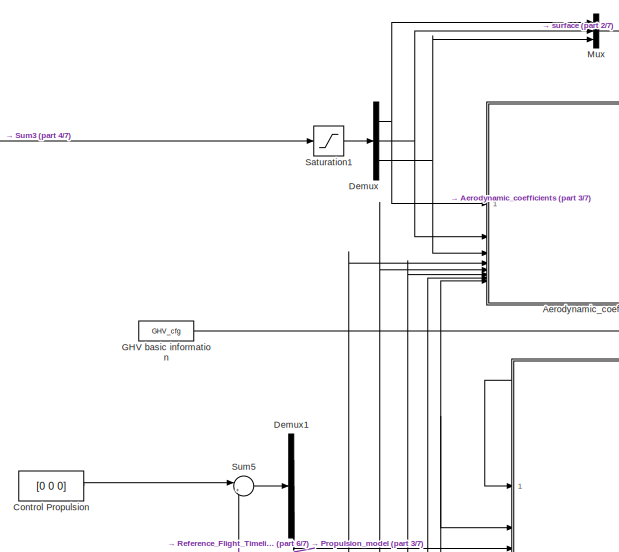
[diagram: root canvas - part 1/7, top left region]
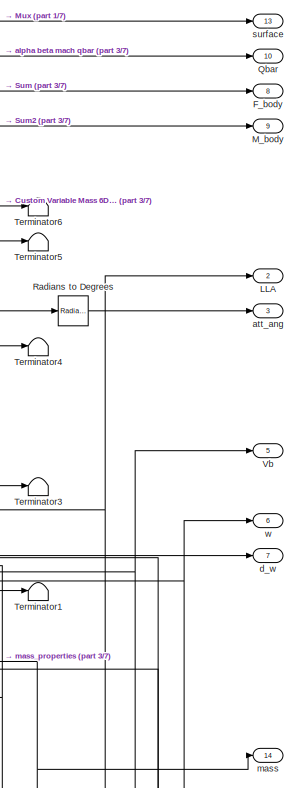
[diagram: root canvas - part 2/7, top right region]
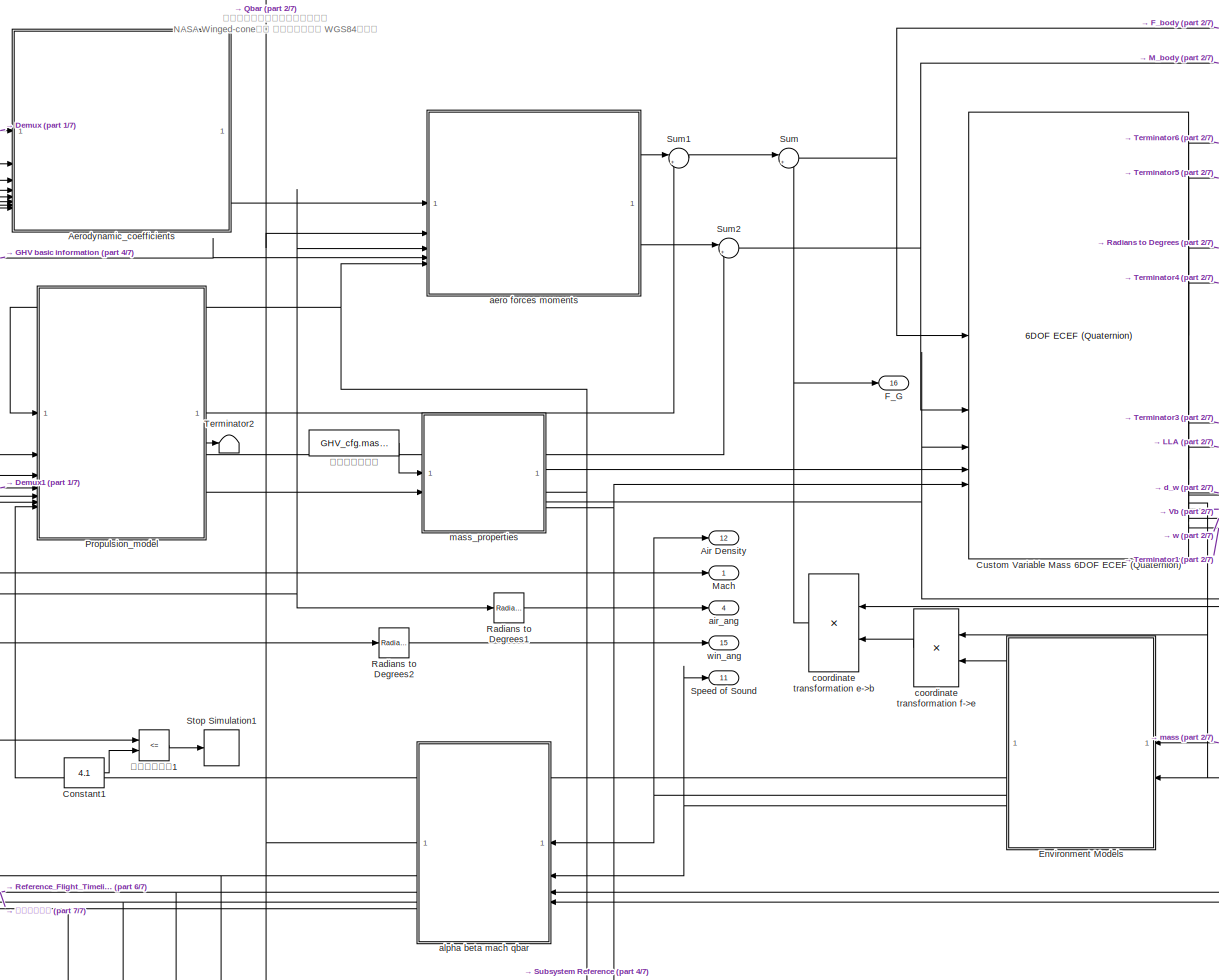
[diagram: root canvas - part 3/7, top center region]
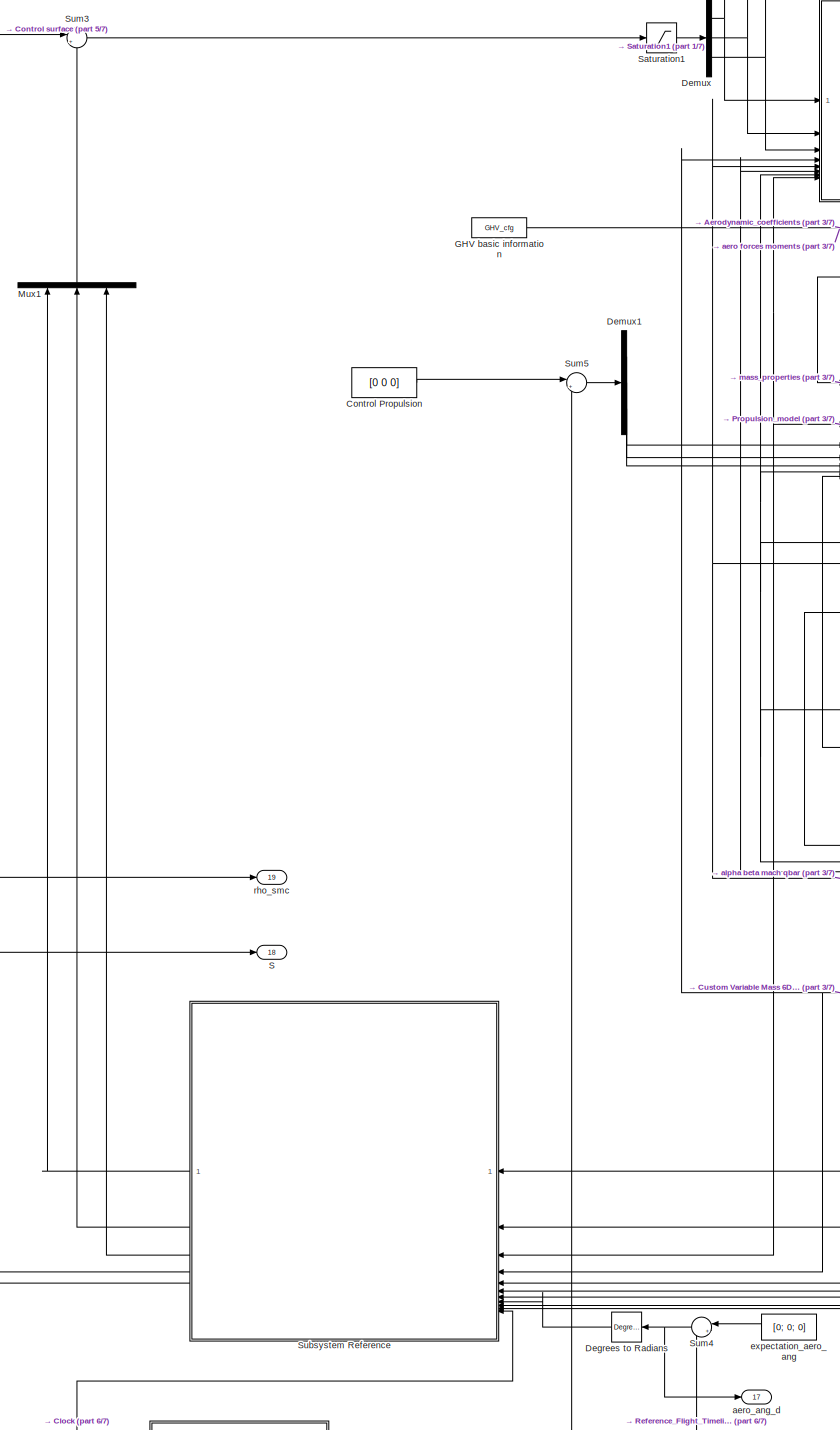
[diagram: root canvas - part 4/7, left side, full height]
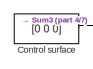
[diagram: root canvas - part 5/7, top left region]
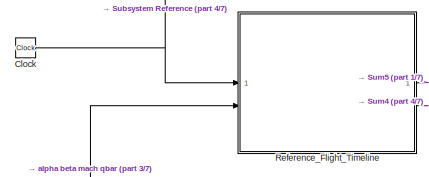
[diagram: root canvas - part 6/7, bottom left region]
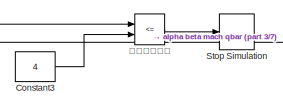
[diagram: root canvas - part 7/7, bottom left region]
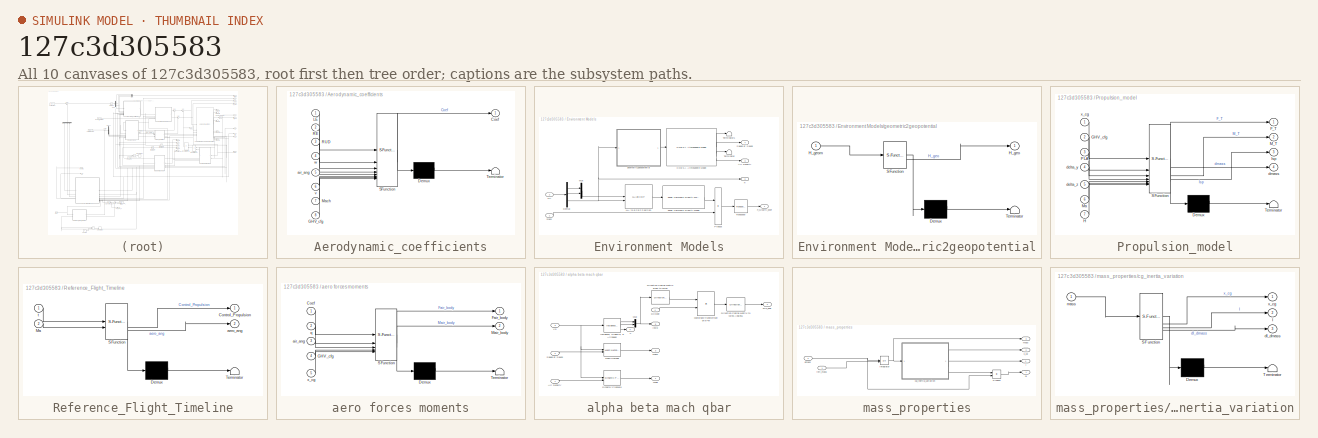
[diagram: thumbnail index - all 10 canvases of the model, root first then tree order]
MODEL slx_127c3d305583
KIND model
CONFIG AbsTol = auto
CONFIG EnableMultiTasking = off
CONFIG FixedStep = 0.0000001
CONFIG InitFcn = run('init.m')
CONFIG MaxStep = 0.001
CONFIG MinStep = auto
CONFIG RelTol = 1e-3
CONFIG SampleTimeConstraint = Unconstrained
CONFIG SolverName = VariableStepAuto
CONFIG StartTime = 0
CONFIG StopTime = 840
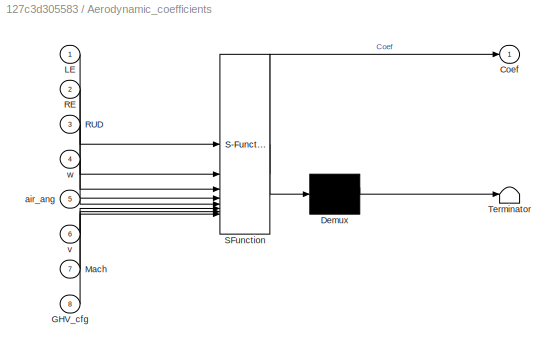
BLOCK [SubSystem] Aerodynamic_coefficients
  ErrorFcn = Stateflow.Translate.translate
  PermitHierarchicalResolution = ExplicitOnly
  SFBlockType = MATLAB Function
  TreatAsAtomicUnit = on
BLOCK [Demux] Aerodynamic_coefficients/ Demux 
  Outputs = 1
BLOCK [S-Function] Aerodynamic_coefficients/ SFunction 
  EnableBusSupport = on
  FunctionName = sf_sfun
  PortCounts = [8 2]
  SFcnIsStateOwnerBlock = off
  SFunctionDeploymentMode = off
  Tag = Stateflow S-Function 2
BLOCK [Terminator] Aerodynamic_coefficients/ Terminator 
BLOCK [Outport] Aerodynamic_coefficients/Coef
BLOCK [Inport] Aerodynamic_coefficients/GHV_cfg
  Port = 8
BLOCK [Inport] Aerodynamic_coefficients/LE
BLOCK [Inport] Aerodynamic_coefficients/Mach
  Port = 7
BLOCK [Inport] Aerodynamic_coefficients/RE
  Port = 2
BLOCK [Inport] Aerodynamic_coefficients/RUD
  Port = 3
BLOCK [Inport] Aerodynamic_coefficients/air_ang
  Port = 5
BLOCK [Inport] Aerodynamic_coefficients/v
  Port = 6
BLOCK [Inport] Aerodynamic_coefficients/w
  Port = 4
BLOCK [Outport] Air Density
  Port = 12
BLOCK [Clock] Clock
BLOCK [Constant] Constant1
  Value = 4.1
BLOCK [Constant] Constant3
  Value = 4
BLOCK [Constant] Control Propulsion
  Value = [0 0 0]
BLOCK [Constant] Control surface
  Value = [0 0 0]
BLOCK [Reference] Custom Variable Mass 6DOF ECEF (Quaternion)  REF=aerolib6dof2/6DOF ECEF (Quaternion)
  LibrarySourceBlock = aerolib6dof2/Custom Variable Mass 6DOF\nECEF (Quaternion)
  SourceBlock = aerolib6dof2/6DOF ECEF (Quaternion)
  SourceType = 6DOF EoM (ECEF)
BLOCK [Reference] Degrees to Radians  REF=simulink_extras/Transformations/Degrees to
Radians
  SourceBlock = simulink_extras/Transformations/Degrees to\nRadians
  SourceType = DegreesToRadians
BLOCK [Demux] Demux
  Outputs = 3
BLOCK [Demux] Demux1
  Outputs = 3
BLOCK [SubSystem] Environment Models
BLOCK [Outport] Environment Models/Air Density
  Port = 3
BLOCK [Reference] Environment Models/COESA Atmosphere Model  REF=aerolibatmos2/COESA Atmosphere Model
  SourceBlock = aerolibatmos2/COESA Atmosphere Model
  SourceType = Atmosphere Model
BLOCK [Demux] Environment Models/Demux
  Outputs = 3
BLOCK [Outport] Environment Models/F_Gravity_ecef
BLOCK [Inport] Environment Models/LLA
  Port = 2
BLOCK [LLA2ECEF] Environment Models/LLA to ECEF Position
BLOCK [Mux] Environment Models/Mux
  DisplayOption = bar
  Inputs = 2
BLOCK [Product] Environment Models/Product
BLOCK [Outport] Environment Models/Speed of Sound
  Port = 4
BLOCK [Terminator] Environment Models/Terminator
BLOCK [Terminator] Environment Models/Terminator1
BLOCK [Reference] Environment Models/Transpose  REF=matrix_library/Transpose
  LibrarySourceBlock = simulink/Matrix\nOperations/Transpose
  SourceBlock = matrix_library/Transpose
  SourceType = Transpose
BLOCK [Reference] Environment Models/Zonal Harmonic Gravity Model  REF=aerolibgravity2/Zonal Harmonic Gravity Model
  SourceBlock = aerolibgravity2/Zonal Harmonic Gravity Model
  SourceType = Zonal Harmonic Gravity Model
BLOCK [SubSystem] Environment Models/geometric2geopotential
  ErrorFcn = Stateflow.Translate.translate
  PermitHierarchicalResolution = ExplicitOnly
  SFBlockType = MATLAB Function
  TreatAsAtomicUnit = on
BLOCK [Demux] Environment Models/geometric2geopotential/ Demux 
  Outputs = 1
BLOCK [S-Function] Environment Models/geometric2geopotential/ SFunction 
  EnableBusSupport = on
  FunctionName = sf_sfun
  PortCounts = [1 2]
  SFcnIsStateOwnerBlock = off
  SFunctionDeploymentMode = off
  Tag = Stateflow S-Function 4
BLOCK [Terminator] Environment Models/geometric2geopotential/ Terminator 
BLOCK [Outport] Environment Models/geometric2geopotential/H_geo
BLOCK [Inport] Environment Models/geometric2geopotential/H_geom
BLOCK [Outport] Environment Models/h
  Port = 2
BLOCK [Inport] Environment Models/mass
BLOCK [Outport] F_G
  Port = 16
BLOCK [Outport] F_body
  Port = 8
BLOCK [Constant] GHV basic information
  OutDataTypeStr = Bus: slBus1
  Value = GHV_cfg
  VectorParams1D = off
BLOCK [Outport] LLA
  Port = 2
BLOCK [Outport] M_body
  Port = 9
BLOCK [Outport] Mach
BLOCK [Mux] Mux
  DisplayOption = bar
  Inputs = 3
BLOCK [Mux] Mux1
  DisplayOption = bar
  Inputs = 3
  NameLocation = right
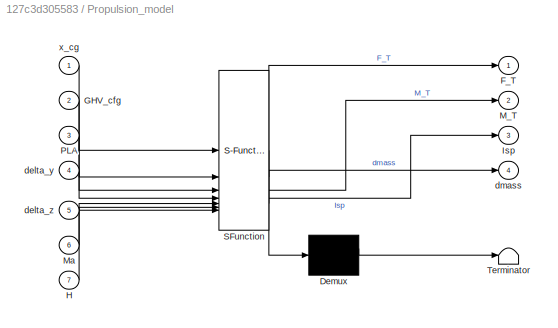
BLOCK [SubSystem] Propulsion_model
  ErrorFcn = Stateflow.Translate.translate
  PermitHierarchicalResolution = ExplicitOnly
  SFBlockType = MATLAB Function
  TreatAsAtomicUnit = on
BLOCK [Demux] Propulsion_model/ Demux 
  Outputs = 1
BLOCK [S-Function] Propulsion_model/ SFunction 
  EnableBusSupport = on
  FunctionName = sf_sfun
  PortCounts = [7 5]
  SFcnIsStateOwnerBlock = off
  SFunctionDeploymentMode = off
  Tag = Stateflow S-Function 1
BLOCK [Terminator] Propulsion_model/ Terminator 
BLOCK [Outport] Propulsion_model/F_T
BLOCK [Inport] Propulsion_model/GHV_cfg
  Port = 2
BLOCK [Inport] Propulsion_model/H
  Port = 7
BLOCK [Outport] Propulsion_model/Isp
  Port = 3
BLOCK [Outport] Propulsion_model/M_T
  Port = 2
BLOCK [Inport] Propulsion_model/Ma
  Port = 6
BLOCK [Inport] Propulsion_model/PLA
  Port = 3
BLOCK [Inport] Propulsion_model/delta_y
  Port = 4
BLOCK [Inport] Propulsion_model/delta_z
  Port = 5
BLOCK [Outport] Propulsion_model/dmass
  Port = 4
BLOCK [Inport] Propulsion_model/x_cg
BLOCK [Outport] Qbar
  Port = 10
BLOCK [Reference] Radians to Degrees  REF=simulink_extras/Transformations/Radians
to Degrees
  SourceBlock = simulink_extras/Transformations/Radians\nto Degrees
  SourceType = RadiansToDegrees
BLOCK [Reference] Radians to Degrees1  REF=simulink_extras/Transformations/Radians
to Degrees
  SourceBlock = simulink_extras/Transformations/Radians\nto Degrees
  SourceType = RadiansToDegrees
BLOCK [Reference] Radians to Degrees2  REF=simulink_extras/Transformations/Radians
to Degrees
  SourceBlock = simulink_extras/Transformations/Radians\nto Degrees
  SourceType = RadiansToDegrees
BLOCK [SubSystem] Reference_Flight_Timeline
  ErrorFcn = Stateflow.Translate.translate
  PermitHierarchicalResolution = ExplicitOnly
  SFBlockType = MATLAB Function
  TreatAsAtomicUnit = on
BLOCK [Demux] Reference_Flight_Timeline/ Demux 
  Outputs = 1
BLOCK [S-Function] Reference_Flight_Timeline/ SFunction 
  EnableBusSupport = on
  FunctionName = sf_sfun
  PortCounts = [2 3]
  SFcnIsStateOwnerBlock = off
  SFunctionDeploymentMode = off
  Tag = Stateflow S-Function 8
BLOCK [Terminator] Reference_Flight_Timeline/ Terminator 
BLOCK [Outport] Reference_Flight_Timeline/Control_Propulsion
BLOCK [Inport] Reference_Flight_Timeline/Ma
  Port = 2
BLOCK [Outport] Reference_Flight_Timeline/aero_ang
  Port = 2
BLOCK [Inport] Reference_Flight_Timeline/t
BLOCK [Outport] S
  Port = 18
BLOCK [Saturate] Saturation1
  LowerLimit = -30
  UpperLimit = 30
BLOCK [Outport] Speed of Sound
  Port = 11
BLOCK [Stop] Stop Simulation
BLOCK [Stop] Stop Simulation1
BLOCK [SubSystem] Subsystem Reference
  PortSchema = {"entries":[{"content":{"sides":[{"content":{"connectorIds":["In3","In4","In9","In1","In2","In10","In5","In6","In7","In8","In11"]},"type":"ConnectorPlacement.EquallySpacedRectSide","uuid":"d16573b0-003d-4406-8236-24f2e66cdcc6"},{"content":{"connectorIds":["Out3","Out2","Out1","Out4","Out5"],"side":"RIGHT"},"type":"ConnectorPlacement.EquallySpacedRectSide","uuid":"8f215ada-bc58-4b5c-bd2e-12efaced2d...<+312ch>
  ReferencedSubsystem = MIMO_attitude_adaptive_smc
BLOCK [Sum] Sum
  Inputs = |++
BLOCK [Sum] Sum1
  Inputs = |++
BLOCK [Sum] Sum2
  Inputs = |++
BLOCK [Sum] Sum3
  Inputs = |++
BLOCK [Sum] Sum4
  Inputs = |++
BLOCK [Sum] Sum5
  Inputs = |++
BLOCK [Terminator] Terminator1
BLOCK [Terminator] Terminator2
BLOCK [Terminator] Terminator3
BLOCK [Terminator] Terminator4
BLOCK [Terminator] Terminator5
BLOCK [Terminator] Terminator6
BLOCK [Outport] Vb
  Port = 5
BLOCK [SubSystem] aero forces moments
  ErrorFcn = Stateflow.Translate.translate
  PermitHierarchicalResolution = ExplicitOnly
  SFBlockType = MATLAB Function
  TreatAsAtomicUnit = on
BLOCK [Demux] aero forces moments/ Demux 
  Outputs = 1
BLOCK [S-Function] aero forces moments/ SFunction 
  EnableBusSupport = on
  FunctionName = sf_sfun
  PortCounts = [5 3]
  SFcnIsStateOwnerBlock = off
  SFunctionDeploymentMode = off
  Tag = Stateflow S-Function 3
BLOCK [Terminator] aero forces moments/ Terminator 
BLOCK [Inport] aero forces moments/Coef
BLOCK [Outport] aero forces moments/Fair_body
BLOCK [Inport] aero forces moments/GHV_cfg
  Port = 4
BLOCK [Outport] aero forces moments/Mair_body
  Port = 2
BLOCK [Inport] aero forces moments/air_ang
  Port = 3
BLOCK [Inport] aero forces moments/q
  Port = 2
BLOCK [Inport] aero forces moments/x_cg
  Port = 5
BLOCK [Outport] aero_ang_d
  Port = 17
BLOCK [Outport] air_ang
  Port = 4
BLOCK [SubSystem] alpha beta mach qbar
BLOCK [Inport] alpha beta mach qbar/Air Density
BLOCK [Inport] alpha beta mach qbar/DCMbe
  Port = 4
BLOCK [Reference] alpha beta mach qbar/Direction Cosine Matrix Body to Wind  REF=aerolibtransform2/Direction Cosine Matrix
Body to Wind
  SourceBlock = aerolibtransform2/Direction Cosine Matrix\nBody to Wind
  SourceType = DCM Body to Wind
BLOCK [Reference] alpha beta mach qbar/Direction Cosine Matrix to Wind Angles1  REF=aerolibtransform2/Direction Cosine Matrix to
Wind Angles
  SourceBlock = aerolibtransform2/Direction Cosine Matrix to\nWind Angles
  SourceType = DCM2Wind
BLOCK [Reference] alpha beta mach qbar/Dynamic Pressure  REF=aerolibasang/Dynamic Pressure
  SourceBlock = aerolibasang/Dynamic Pressure
  SourceType = Dynamic Pressure
BLOCK [Outport] alpha beta mach qbar/Incid
  Port = 5
BLOCK [Reference] alpha beta mach qbar/Incidence, Sideslip, & Airspeed  REF=aerolibasang/Incidence, Sideslip,
& Airspeed
  SourceBlock = aerolibasang/Incidence, Sideslip,\n& Airspeed
  SourceType = Incidence,Sideslip,&Airspeed
BLOCK [Outport] alpha beta mach qbar/Mach
  Port = 3
BLOCK [Reference] alpha beta mach qbar/Mach Number  REF=aerolibasang/Mach Number
  SourceBlock = aerolibasang/Mach Number
  SourceType = Mach Number
BLOCK [Mux] alpha beta mach qbar/Mux
  DisplayOption = bar
  Inputs = 2
BLOCK [Outport] alpha beta mach qbar/Qbar
BLOCK [Inport] alpha beta mach qbar/Speed of Sound
  Port = 2
BLOCK [Outport] alpha beta mach qbar/V
  Port = 4
BLOCK [Inport] alpha beta mach qbar/Vb
  Port = 3
BLOCK [Product] alpha beta mach qbar/coordinate transformation e->w
  Multiplication = Matrix(*)
BLOCK [Outport] alpha beta mach qbar/win_ang
  Port = 2
BLOCK [Outport] att_ang
  Port = 3
BLOCK [Product] coordinate transformation e->b
  Multiplication = Matrix(*)
BLOCK [Product] coordinate transformation f->e
  Multiplication = Matrix(*)
BLOCK [Outport] d_w
  Port = 7
BLOCK [Constant] expectation_aero_ang
  Value = [0; 0; 0]
  VectorParams1D = off
BLOCK [Outport] mass
  Port = 14
BLOCK [SubSystem] mass_properties
BLOCK [Outport] mass_properties/I
  Port = 4
BLOCK [Integrator] mass_properties/Integrator
  InitialConditionSource = external
BLOCK [Product] mass_properties/Product
BLOCK [SubSystem] mass_properties/cg_inertia_variation
  ErrorFcn = Stateflow.Translate.translate
  PermitHierarchicalResolution = ExplicitOnly
  SFBlockType = MATLAB Function
  TreatAsAtomicUnit = on
BLOCK [Demux] mass_properties/cg_inertia_variation/ Demux 
  Outputs = 1
BLOCK [S-Function] mass_properties/cg_inertia_variation/ SFunction 
  EnableBusSupport = on
  FunctionName = sf_sfun
  PortCounts = [1 4]
  SFcnIsStateOwnerBlock = off
  SFunctionDeploymentMode = off
  Tag = Stateflow S-Function 7
BLOCK [Terminator] mass_properties/cg_inertia_variation/ Terminator 
BLOCK [Outport] mass_properties/cg_inertia_variation/I
  Port = 2
BLOCK [Outport] mass_properties/cg_inertia_variation/dI_dmass
  Port = 3
BLOCK [Inport] mass_properties/cg_inertia_variation/mass
BLOCK [Outport] mass_properties/cg_inertia_variation/x_cg
BLOCK [Outport] mass_properties/dI
BLOCK [Inport] mass_properties/dmass
  Port = 2
BLOCK [Inport] mass_properties/init_mass
BLOCK [Outport] mass_properties/mass
  Port = 3
BLOCK [Outport] mass_properties/x_cg
  Port = 2
BLOCK [Outport] rho_smc
  Port = 19
BLOCK [Outport] surface
  Port = 13
BLOCK [Outport] w
  Port = 6
BLOCK [Outport] win_ang
  Port = 15
BLOCK [RelationalOperator] 仿真停止条件
  InputSameDT = off
  Operator = <=
  OutDataTypeStr = boolean
  RndMeth = Simplest
BLOCK [RelationalOperator] 仿真停止条件1
  InputSameDT = off
  Operator = <=
  OutDataTypeStr = boolean
  RndMeth = Simplest
BLOCK [Constant] 飞行器初始质量
  Value = GHV_cfg.mass_full
ANNOTATION (root): 高超声速飞行器六自由度仿真平台 NASA Winged-cone模型 变质量推力模型 WGS84坐标系
LINE Aerodynamic_coefficients:1 -> aero forces moments:1
NET Clock:1 -> Reference_Flight_Timeline:1, Subsystem Reference:11
LINE Constant1:1 -> 仿真停止条件1:2
LINE Constant3:1 -> 仿真停止条件:2
LINE Control Propulsion:1 -> Sum5:1
LINE Control surface:1 -> Sum3:1
LINE Custom Variable Mass 6DOF ECEF (Quaternion):1 -> Terminator6:1
NET Custom Variable Mass 6DOF ECEF (Quaternion):10 -> Aerodynamic_coefficients:4, Subsystem Reference:4, w:1
LINE Custom Variable Mass 6DOF ECEF (Quaternion):11 -> d_w:1
LINE Custom Variable Mass 6DOF ECEF (Quaternion):12 -> Terminator1:1
LINE Custom Variable Mass 6DOF ECEF (Quaternion):2 -> Terminator5:1
NET Custom Variable Mass 6DOF ECEF (Quaternion):3 -> Environment Models:2, LLA:1
LINE Custom Variable Mass 6DOF ECEF (Quaternion):4 -> Radians to Degrees:1
LINE Custom Variable Mass 6DOF ECEF (Quaternion):5 -> Terminator4:1
NET Custom Variable Mass 6DOF ECEF (Quaternion):6 -> alpha beta mach qbar:4, coordinate transformation e->b:1
LINE Custom Variable Mass 6DOF ECEF (Quaternion):7 -> coordinate transformation f->e:1
NET Custom Variable Mass 6DOF ECEF (Quaternion):8 -> Vb:1, alpha beta mach qbar:3
LINE Custom Variable Mass 6DOF ECEF (Quaternion):9 -> Terminator3:1
LINE Degrees to Radians:1 -> Subsystem Reference:8
LINE Demux1:1 -> Propulsion_model:3
LINE Demux1:2 -> Propulsion_model:4
LINE Demux1:3 -> Propulsion_model:5
NET Demux:1 -> Aerodynamic_coefficients:1, Mux:1
NET Demux:2 -> Aerodynamic_coefficients:2, Mux:2
NET Demux:3 -> Aerodynamic_coefficients:3, Mux:3
LINE Environment Models/COESA Atmosphere Model:1 -> Environment Models/Terminator1:1
LINE Environment Models/COESA Atmosphere Model:2 -> Environment Models/Speed of Sound:1
LINE Environment Models/COESA Atmosphere Model:3 -> Environment Models/Terminator:1
LINE Environment Models/COESA Atmosphere Model:4 -> Environment Models/Air Density:1
LINE Environment Models/Demux:1 -> Environment Models/Mux:1
LINE Environment Models/Demux:2 -> Environment Models/Mux:2
NET Environment Models/Demux:3 -> Environment Models/LLA to ECEF Position:2, Environment Models/geometric2geopotential:1, Environment Models/h:1
LINE Environment Models/LLA to ECEF Position:1 -> Environment Models/Zonal Harmonic Gravity Model:1
LINE Environment Models/LLA:1 -> Environment Models/Demux:1
LINE Environment Models/Mux:1 -> Environment Models/LLA to ECEF Position:1
LINE Environment Models/Product:1 -> Environment Models/Transpose:1
LINE Environment Models/Transpose:1 -> Environment Models/F_Gravity_ecef:1
LINE Environment Models/Zonal Harmonic Gravity Model:1 -> Environment Models/Product:1
LINE Environment Models/geometric2geopotential:1 -> Environment Models/COESA Atmosphere Model:1
LINE Environment Models/mass:1 -> Environment Models/Product:2
LINE Environment Models:1 -> coordinate transformation f->e:2
LINE Environment Models:2 -> Propulsion_model:7
NET Environment Models:3 -> Air Density:1, alpha beta mach qbar:1
NET Environment Models:4 -> Speed of Sound:1, alpha beta mach qbar:2
NET GHV basic information:1 -> Aerodynamic_coefficients:8, Propulsion_model:2, Subsystem Reference:3, aero forces moments:4
LINE Mux1:1 -> Sum3:2
LINE Mux:1 -> surface:1
LINE Propulsion_model:1 -> Sum1:2
LINE Propulsion_model:2 -> Sum2:2
LINE Propulsion_model:3 -> Terminator2:1
LINE Propulsion_model:4 -> mass_properties:2
LINE Radians to Degrees1:1 -> air_ang:1
LINE Radians to Degrees2:1 -> win_ang:1
LINE Radians to Degrees:1 -> att_ang:1
LINE Reference_Flight_Timeline:1 -> Sum5:2
LINE Reference_Flight_Timeline:2 -> Sum4:2
LINE Saturation1:1 -> Demux:1
LINE Subsystem Reference:1 -> Mux1:1
LINE Subsystem Reference:2 -> Mux1:2
LINE Subsystem Reference:3 -> Mux1:3
LINE Subsystem Reference:4 -> S:1
LINE Subsystem Reference:5 -> rho_smc:1
LINE Sum1:1 -> Sum:1
NET Sum2:1 -> Custom Variable Mass 6DOF ECEF (Quaternion):2, M_body:1
LINE Sum3:1 -> Saturation1:1
NET Sum4:1 -> Degrees to Radians:1, aero_ang_d:1
LINE Sum5:1 -> Demux1:1
NET Sum:1 -> Custom Variable Mass 6DOF ECEF (Quaternion):1, F_body:1
LINE aero forces moments:1 -> Sum1:1
LINE aero forces moments:2 -> Sum2:1
LINE alpha beta mach qbar/Air Density:1 -> alpha beta mach qbar/Dynamic Pressure:2
LINE alpha beta mach qbar/DCMbe:1 -> alpha beta mach qbar/coordinate transformation e->w:2
LINE alpha beta mach qbar/Direction Cosine Matrix Body to Wind:1 -> alpha beta mach qbar/coordinate transformation e->w:1
LINE alpha beta mach qbar/Direction Cosine Matrix to Wind Angles1:1 -> alpha beta mach qbar/win_ang:1
LINE alpha beta mach qbar/Dynamic Pressure:1 -> alpha beta mach qbar/Qbar:1
LINE alpha beta mach qbar/Incidence, Sideslip, & Airspeed:1 -> alpha beta mach qbar/Mux:1
LINE alpha beta mach qbar/Incidence, Sideslip, & Airspeed:2 -> alpha beta mach qbar/Mux:2
LINE alpha beta mach qbar/Incidence, Sideslip, & Airspeed:3 -> alpha beta mach qbar/V:1
LINE alpha beta mach qbar/Mach Number:1 -> alpha beta mach qbar/Mach:1
NET alpha beta mach qbar/Mux:1 -> alpha beta mach qbar/Direction Cosine Matrix Body to Wind:1, alpha beta mach qbar/Incid:1
LINE alpha beta mach qbar/Speed of Sound:1 -> alpha beta mach qbar/Mach Number:2
NET alpha beta mach qbar/Vb:1 -> alpha beta mach qbar/Dynamic Pressure:1, alpha beta mach qbar/Incidence, Sideslip, & Airspeed:1, alpha beta mach qbar/Mach Number:1
LINE alpha beta mach qbar/coordinate transformation e->w:1 -> alpha beta mach qbar/Direction Cosine Matrix to Wind Angles1:1
NET alpha beta mach qbar:1 -> Qbar:1, Subsystem Reference:5, aero forces moments:2
NET alpha beta mach qbar:2 -> Radians to Degrees2:1, Subsystem Reference:10
NET alpha beta mach qbar:3 -> Aerodynamic_coefficients:7, Mach:1, Propulsion_model:6, Reference_Flight_Timeline:2, Subsystem Reference:2, 仿真停止条件1:1, 仿真停止条件:1
NET alpha beta mach qbar:4 -> Aerodynamic_coefficients:6, Subsystem Reference:1
NET alpha beta mach qbar:5 -> Aerodynamic_coefficients:5, Radians to Degrees1:1, Subsystem Reference:9, aero forces moments:3
NET coordinate transformation e->b:1 -> F_G:1, Sum:2
LINE coordinate transformation f->e:1 -> coordinate transformation e->b:2
LINE expectation_aero_ang:1 -> Sum4:1
NET mass_properties/Integrator:1 -> mass_properties/cg_inertia_variation:1, mass_properties/mass:1
LINE mass_properties/Product:1 -> mass_properties/dI:1
LINE mass_properties/cg_inertia_variation:1 -> mass_properties/x_cg:1
LINE mass_properties/cg_inertia_variation:2 -> mass_properties/I:1
LINE mass_properties/cg_inertia_variation:3 -> mass_properties/Product:1
NET mass_properties/dmass:1 -> mass_properties/Integrator:1, mass_properties/Product:2
LINE mass_properties/init_mass:1 -> mass_properties/Integrator:2
LINE mass_properties:1 -> Custom Variable Mass 6DOF ECEF (Quaternion):4
NET mass_properties:2 -> Propulsion_model:1, Subsystem Reference:6, aero forces moments:5
NET mass_properties:3 -> Custom Variable Mass 6DOF ECEF (Quaternion):3, Environment Models:1, mass:1
NET mass_properties:4 -> Custom Variable Mass 6DOF ECEF (Quaternion):5, Subsystem Reference:7
LINE 仿真停止条件1:1 -> Stop Simulation1:1
LINE 仿真停止条件:1 -> Stop Simulation:1
LINE 飞行器初始质量:1 -> mass_properties:1
note: NET lines group one-source signal fan-out (src -> all destinations, sorted); 1:1 wires keep LINE
CHART Propulsion_model states=1 transitions=1
  STATE_LABEL 'eML_blk_kernel()'
  STATE_LABEL 'SCRIPT:\nfunction [F_T,M_T, Isp,  dmass] = S_Propulsion_model(x_cg, GHV_cfg, PLA, delta_y, delta_z, Ma, H)\n    F_T = zeros(3, 1); %#ok<PREALL>\n    M_T = zeros(3, 1); %#ok<PREALL>\n   [F_T, M_T, Isp, dmass] = Propulsion_model(PLA, H, Ma, delta_y, delta_z, GHV_cfg, x_cg);\n\nend'
CHART Aerodynamic_coefficients states=1 transitions=1
  STATE_LABEL 'eML_blk_kernel()'
  STATE_LABEL 'SCRIPT:\nfunction Coef = S_Aerodynamic_coefficients(LE, RE, RUD, w, air_ang,v, Mach, GHV_cfg)\n    Coef = zeros(6, 1);\n    Coef = Aerodynamic_coefficients(LE, RE, RUD, air_ang, v, w, Mach, GHV_cfg);\n\nend\n'
CHART aero forces moments states=1 transitions=1
  STATE_LABEL 'eML_blk_kernel()'
  STATE_LABEL 'SCRIPT:\nfunction [Fair_body, Mair_body] = S_aero_forces_moments(Coef, q, air_ang, GHV_cfg, x_cg)\n\n    Fair_body = zeros(3, 1); %#ok<PREALL>\n    Mair_body = zeros(3, 1); %#ok<PREALL>\n    [Fair_body, Mair_body] = aero_forces_moments(Coef, q, GHV_cfg, x_cg, air_ang);\n\nend'
CHART Environment Models/geometric2geopotential states=1 transitions=1
  STATE_LABEL 'eML_blk_kernel()'
  STATE_LABEL 'SCRIPT:\nfunction H_geo = S_geometric2geopotential(H_geom)\n\n    H_geo = geometric2geopotential(H_geom);\n\nend\n'
CHART mass_properties/cg_inertia_variation states=1 transitions=1
  STATE_LABEL 'eML_blk_kernel()'
  STATE_LABEL 'SCRIPT:\nfunction [x_cg, I, dI_dmass] = S_cg_inertia_variation(mass)\n\n     [x_cg, I, dI_dmass] = cg_inertia_variation(mass);\n     \nend\n'
CHART Reference_Flight_Timeline states=1 transitions=1
  STATE_LABEL 'eML_blk_kernel()'
  STATE_LABEL 'SCRIPT:\nfunction [Control_Propulsion,aero_ang] = S_Reference_Flight_Timeline(t, Ma)\n\n   [aero_ang, Control_Propulsion] = Reference_Flight_Timeline(t, Ma);\n\nend\n'
CHART  states=0 transitions=0
CHART  states=0 transitions=0
CHART  states=0 transitions=0
CHART  states=0 transitions=0
CHART  states=0 transitions=0
CHART  states=0 transitions=0
